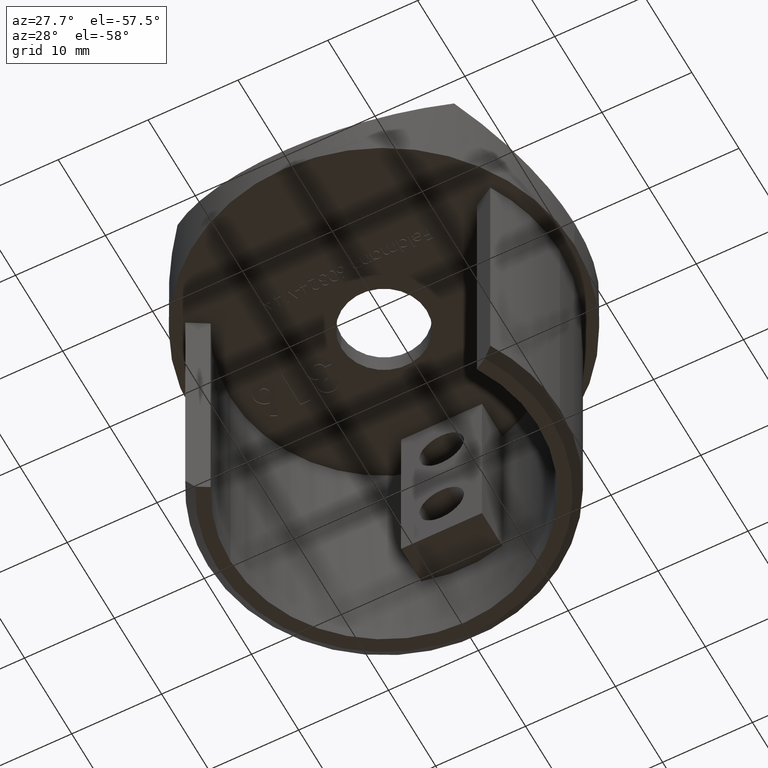
[diagram: clean part render]
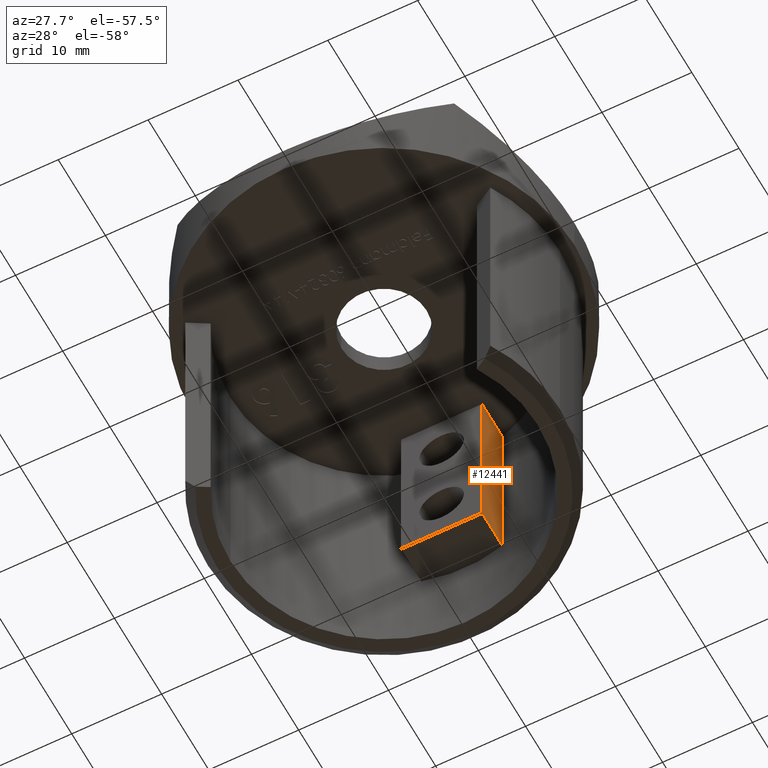
[diagram: same view with one face highlighted and labeled with its STEP entity id]
A machine part, auxiliary view. The second image highlights one B-rep face of the part: STEP entity #12441.
In plain terms, the highlighted planar face has unit normal (-1, 0, -0).
Its self-contained STEP definition (entity closure, byte-faithful):
#425 = CARTESIAN_POINT ( 'NONE',  ( 4.500000000000002665, 16.49727250184102800, 6.505213034913026604E-16 ) ) ;
#1294 = DIRECTION ( 'NONE',  ( -0.000000000000000000, 0.000000000000000000, 1.000000000000000000 ) ) ;
#1894 = EDGE_CURVE ( 'NONE', #13728, #9239, #13511, .T. ) ;
#2324 = VERTEX_POINT ( 'NONE', #6227 ) ;
#3459 = DIRECTION ( 'NONE',  ( -0.000000000000000000, 1.000000000000000000, -0.000000000000000000 ) ) ;
#3540 = DIRECTION ( 'NONE',  ( -0.000000000000000000, -0.000000000000000000, 1.000000000000000000 ) ) ;
#3805 = LINE ( 'NONE', #3975, #10976 ) ;
#3975 = CARTESIAN_POINT ( 'NONE',  ( 4.500000000000002665, 16.49727250184102800, -30.00000000000000000 ) ) ;
#4267 = EDGE_CURVE ( 'NONE', #6814, #9239, #3805, .T. ) ;
#5070 = AXIS2_PLACEMENT_3D ( 'NONE', #14584, #7327, #1294 ) ;
#5316 = CARTESIAN_POINT ( 'NONE',  ( 4.500000000000002665, 12.20000000000000284, -19.99999999999999645 ) ) ;
#5635 = ORIENTED_EDGE ( 'NONE', *, *, #12455, .F. ) ;
#5942 = CARTESIAN_POINT ( 'NONE',  ( 4.500000000000002665, 12.20000000000000284, 6.505213034913026604E-16 ) ) ;
#6125 = CARTESIAN_POINT ( 'NONE',  ( 4.500000000000002665, 16.49727250184102800, -19.99999999999999645 ) ) ;
#6227 = CARTESIAN_POINT ( 'NONE',  ( 4.500000000000002665, 12.20000000000000284, -19.99999999999999645 ) ) ;
#6522 = ORIENTED_EDGE ( 'NONE', *, *, #4267, .T. ) ;
#6814 = VERTEX_POINT ( 'NONE', #6125 ) ;
#7327 = DIRECTION ( 'NONE',  ( -1.000000000000000000, 0.000000000000000000, -0.000000000000000000 ) ) ;
#8743 = EDGE_CURVE ( 'NONE', #2324, #6814, #14061, .T. ) ;
#9239 = VERTEX_POINT ( 'NONE', #425 ) ;
#9463 = VECTOR ( 'NONE', #3540, 1000.000000000000000 ) ;
#10805 = ORIENTED_EDGE ( 'NONE', *, *, #8743, .T. ) ;
#10976 = VECTOR ( 'NONE', #11304, 1000.000000000000000 ) ;
#11304 = DIRECTION ( 'NONE',  ( -0.000000000000000000, -0.000000000000000000, 1.000000000000000000 ) ) ;
#11534 = FACE_OUTER_BOUND ( 'NONE', #12207, .T. ) ;
#12164 = CARTESIAN_POINT ( 'NONE',  ( 4.500000000000002665, 12.20000000000000284, 6.505213034913026604E-16 ) ) ;
#12207 = EDGE_LOOP ( 'NONE', ( #10805, #6522, #15043, #5635 ) ) ;
#12441 = ADVANCED_FACE ( 'NONE', ( #11534 ), #13376, .F. ) ;
#12455 = EDGE_CURVE ( 'NONE', #2324, #13728, #13808, .T. ) ;
#13376 = PLANE ( 'NONE',  #5070 ) ;
#13511 = LINE ( 'NONE', #5942, #13877 ) ;
#13680 = VECTOR ( 'NONE', #15139, 1000.000000000000000 ) ;
#13728 = VERTEX_POINT ( 'NONE', #13930 ) ;
#13808 = LINE ( 'NONE', #12164, #9463 ) ;
#13877 = VECTOR ( 'NONE', #3459, 1000.000000000000000 ) ;
#13930 = CARTESIAN_POINT ( 'NONE',  ( 4.500000000000002665, 12.20000000000000284, 0.000000000000000000 ) ) ;
#14061 = LINE ( 'NONE', #5316, #13680 ) ;
#14584 = CARTESIAN_POINT ( 'NONE',  ( 4.500000000000002665, 12.20000000000000284, 6.505213034913026604E-16 ) ) ;
#15043 = ORIENTED_EDGE ( 'NONE', *, *, #1894, .F. ) ;
#15139 = DIRECTION ( 'NONE',  ( -0.000000000000000000, 1.000000000000000000, -0.000000000000000000 ) ) ;